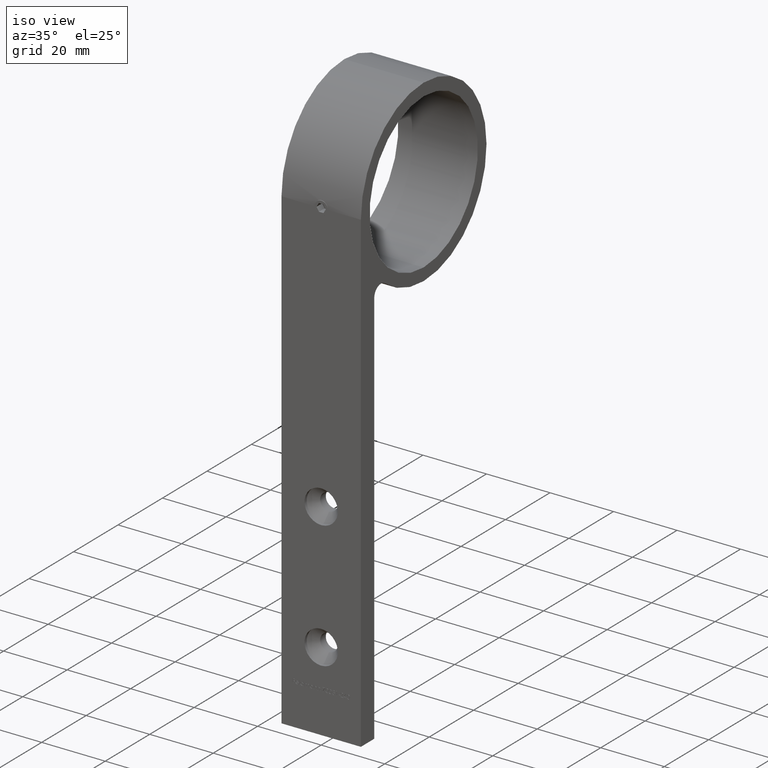
[diagram: clean part render]
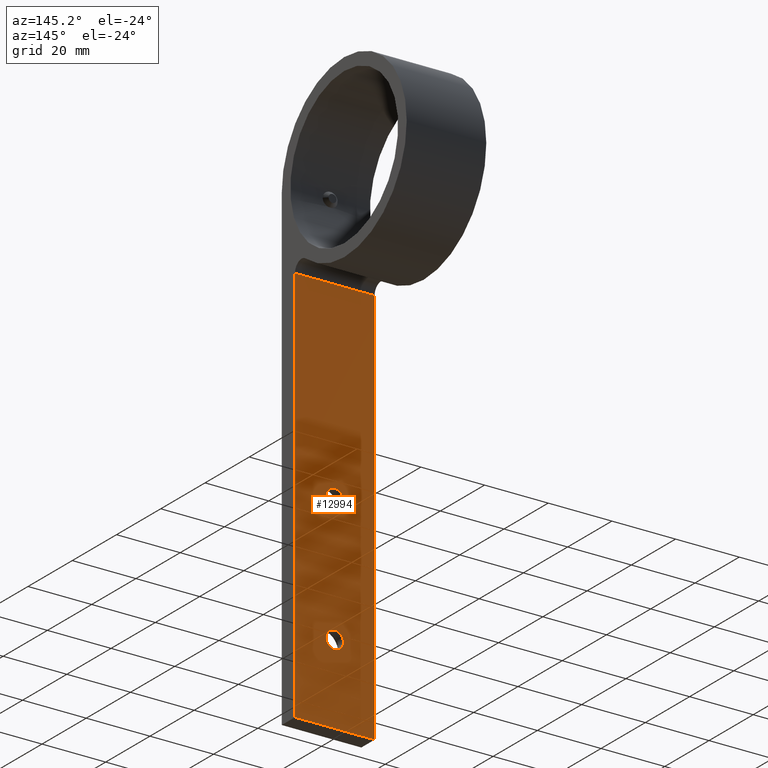
[diagram: tour spotlight — one face highlighted and labeled with its STEP entity id]
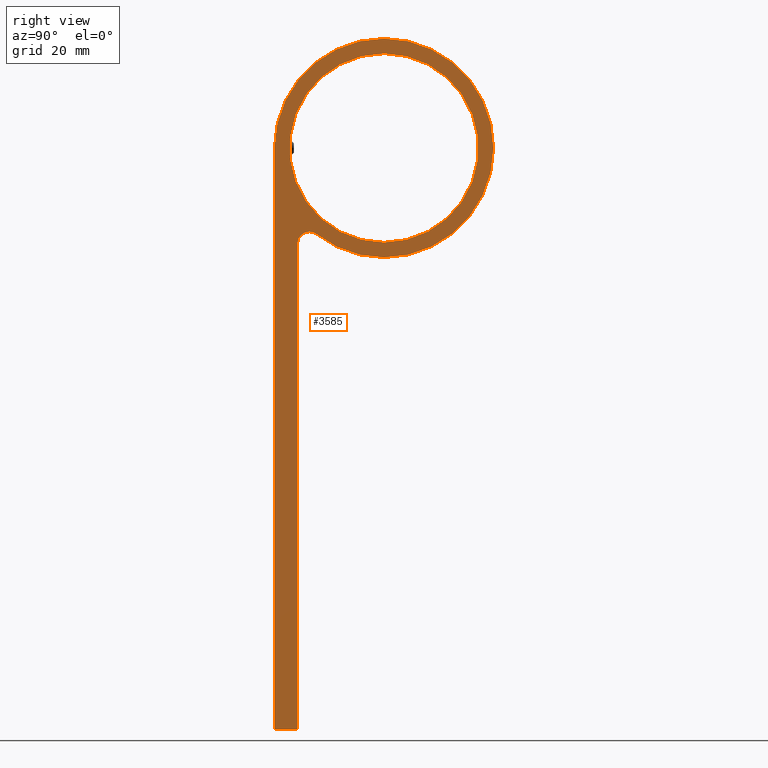
[diagram: tour spotlight — one face highlighted and labeled with its STEP entity id]
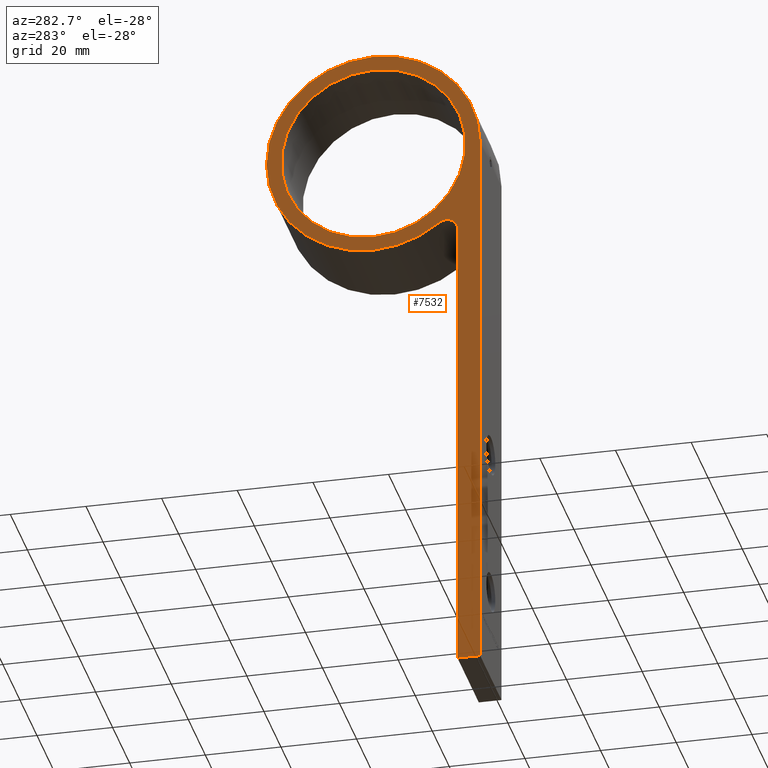
[diagram: tour spotlight — one face highlighted and labeled with its STEP entity id]
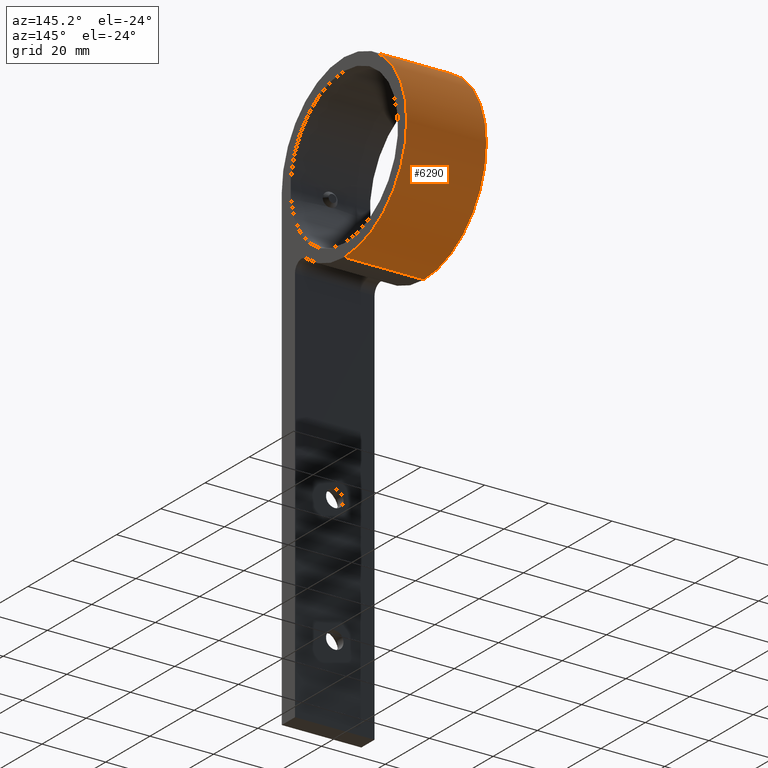
[diagram: tour spotlight — one face highlighted and labeled with its STEP entity id]
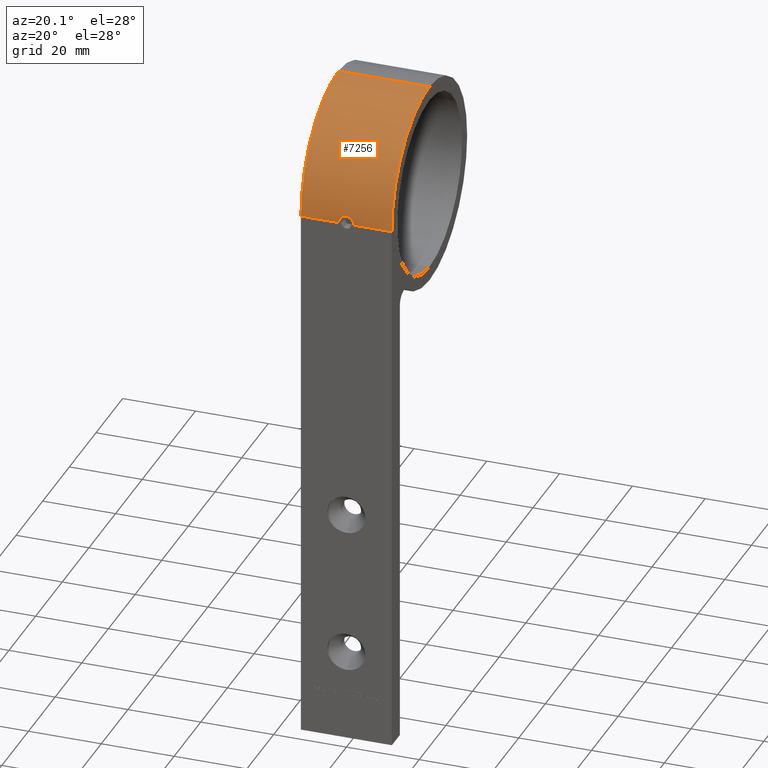
[diagram: tour spotlight — one face highlighted and labeled with its STEP entity id]
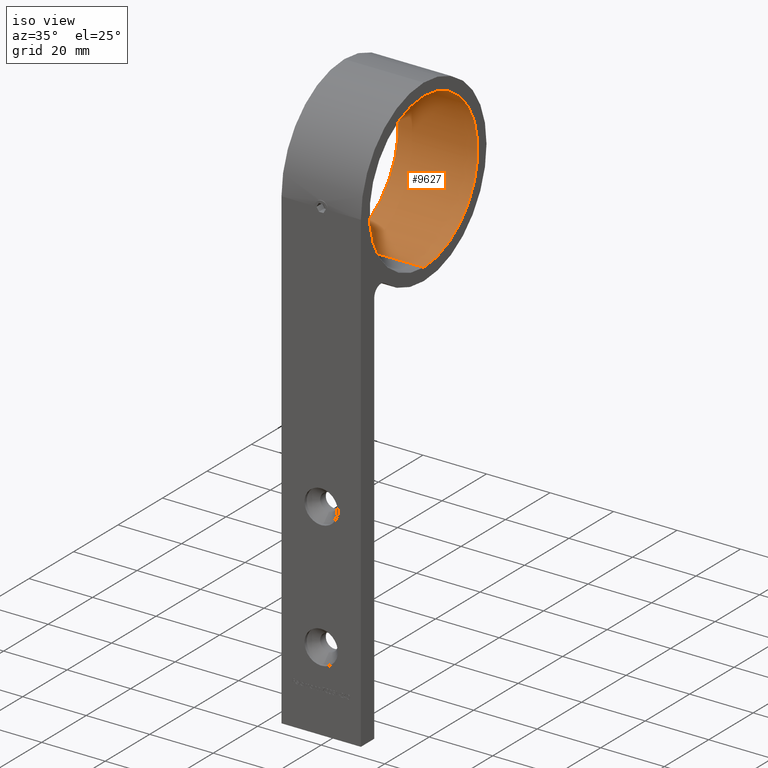
[diagram: tour spotlight — one face highlighted and labeled with its STEP entity id]
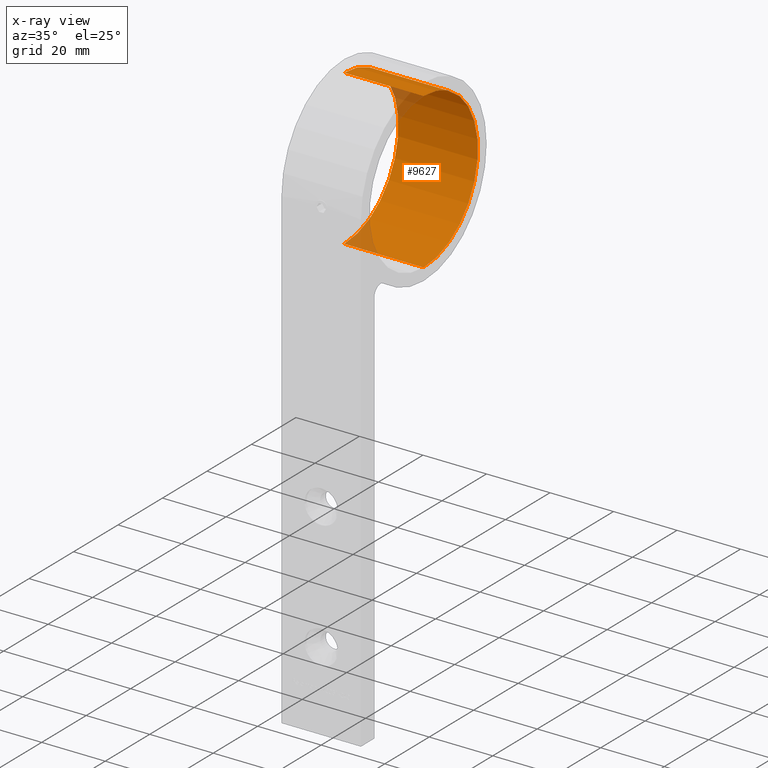
[diagram: x-ray of the same camera — body ghosted, this tour face saturated]
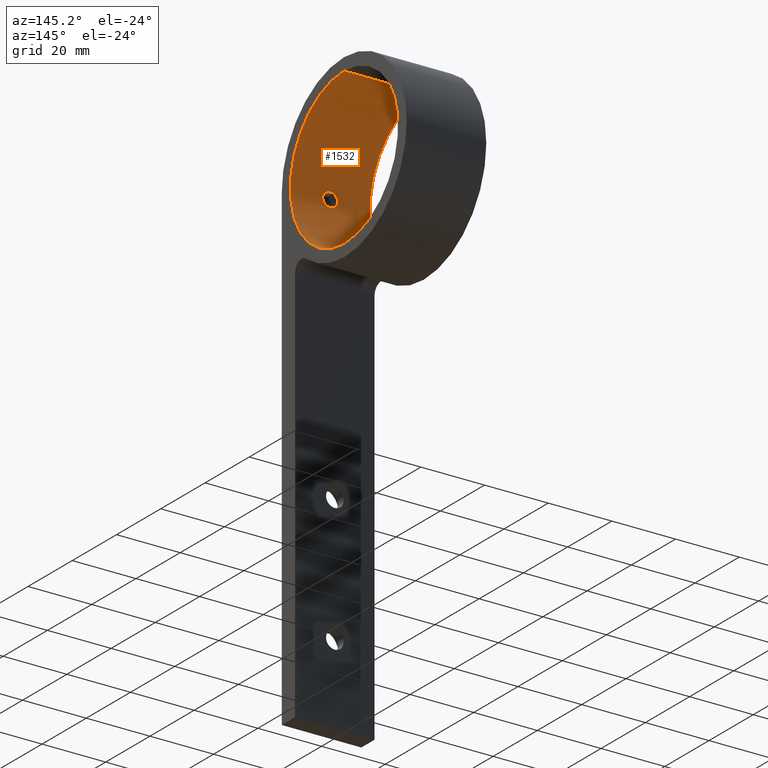
[diagram: tour spotlight — one face highlighted and labeled with its STEP entity id]
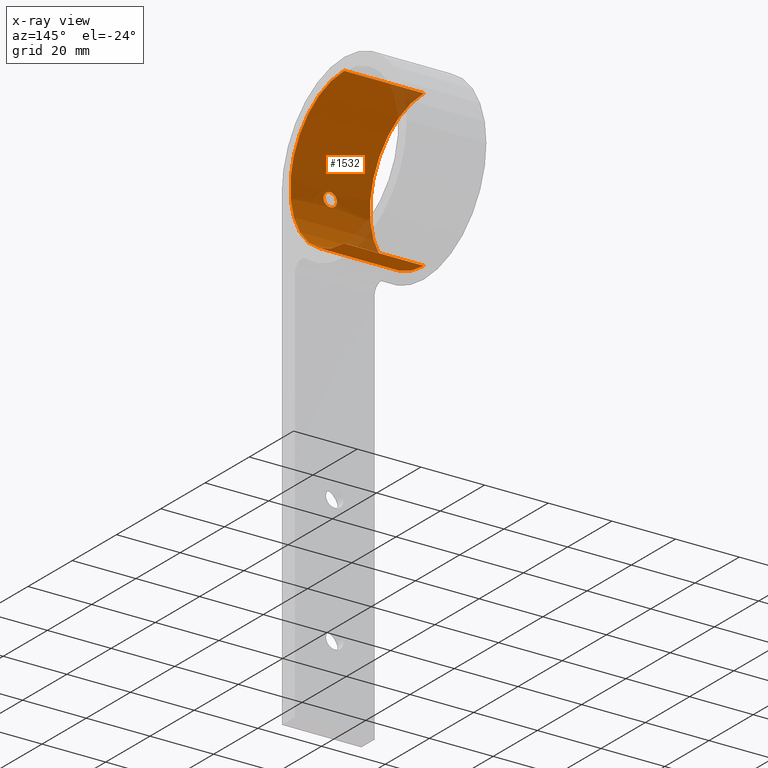
[diagram: x-ray of the same camera — body ghosted, this tour face saturated]
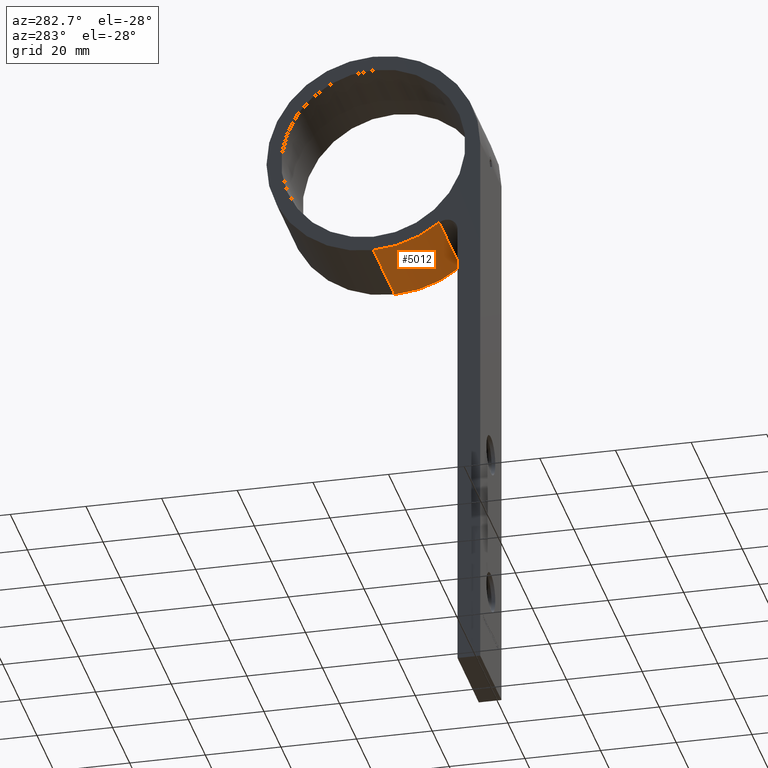
[diagram: tour spotlight — one face highlighted and labeled with its STEP entity id]
A machine part: a face-by-face anatomy tour. The part has 252 B-rep faces; the first image is the clean iso view, then the 8 largest visible faces are spotlighted one at a time (largest first), each with its STEP entity span.

Face 1 — auxiliary view, entity #12994. In plain terms, the highlighted planar face has unit normal (0, -1, -0).
Definition (entity closure, byte-faithful):
#6 = VERTEX_POINT ( 'NONE', #9365 ) ;
#95 = ORIENTED_EDGE ( 'NONE', *, *, #11131, .T. ) ;
#205 = VECTOR ( 'NONE', #2533, 1000.000000000000000 ) ;
#472 = AXIS2_PLACEMENT_3D ( 'NONE', #8249, #6074, #1966 ) ;
#657 = VERTEX_POINT ( 'NONE', #8118 ) ;
#674 = AXIS2_PLACEMENT_3D ( 'NONE', #5007, #7108, #9301 ) ;
#813 = VECTOR ( 'NONE', #10238, 1000.000000000000000 ) ;
#1015 = VECTOR ( 'NONE', #12824, 1000.000000000000000 ) ;
#1142 = CARTESIAN_POINT ( 'NONE',  ( -12.50000000000000000, 5.999999999999988500, -24.61706725018234100 ) ) ;
#1399 = CIRCLE ( 'NONE', #11077, 2.750000000000002700 ) ;
#1606 = FACE_BOUND ( 'NONE', #2253, .T. ) ;
#1966 = DIRECTION ( 'NONE',  ( 0.0000000000000000000, 0.0000000000000000000, -1.000000000000000000 ) ) ;
#2075 = VERTEX_POINT ( 'NONE', #1142 ) ;
#2253 = EDGE_LOOP ( 'NONE', ( #3855, #9153 ) ) ;
#2533 = DIRECTION ( 'NONE',  ( 0.0000000000000000000, -9.158141630991051500E-017, 1.000000000000000000 ) ) ;
#2729 = FACE_OUTER_BOUND ( 'NONE', #3090, .T. ) ;
#2963 = PLANE ( 'NONE',  #674 ) ;
#3090 = EDGE_LOOP ( 'NONE', ( #95, #3936, #8838, #9854 ) ) ;
#3389 = CARTESIAN_POINT ( 'NONE',  ( 12.50000000000000000, 6.000000000000000000, -150.0000000000000000 ) ) ;
#3701 = EDGE_CURVE ( 'NONE', #7289, #657, #1399, .T. ) ;
#3855 = ORIENTED_EDGE ( 'NONE', *, *, #9916, .T. ) ;
#3936 = ORIENTED_EDGE ( 'NONE', *, *, #4679, .T. ) ;
#4269 = CIRCLE ( 'NONE', #5744, 2.750000000000002700 ) ;
#4374 = CARTESIAN_POINT ( 'NONE',  ( 0.0000000000000000000, 5.999999999999997300, -125.0000000000000000 ) ) ;
#4388 = FACE_BOUND ( 'NONE', #10928, .T. ) ;
#4650 = CARTESIAN_POINT ( 'NONE',  ( -4.898587196589413800E-015, 5.999999999999993800, -84.99999999999998600 ) ) ;
#4679 = EDGE_CURVE ( 'NONE', #2075, #11576, #13284, .T. ) ;
#5007 = CARTESIAN_POINT ( 'NONE',  ( 12.50000000000000000, 6.000000000000000000, -150.0000000000000000 ) ) ;
#5428 = DIRECTION ( 'NONE',  ( 0.0000000000000000000, 0.0000000000000000000, -1.000000000000000000 ) ) ;
#5744 = AXIS2_PLACEMENT_3D ( 'NONE', #5976, #13209, #7001 ) ;
#5914 = CIRCLE ( 'NONE', #10212, 2.750000000000002700 ) ;
#5976 = CARTESIAN_POINT ( 'NONE',  ( -4.898587196589413800E-015, 5.999999999999993800, -84.99999999999998600 ) ) ;
#6074 = DIRECTION ( 'NONE',  ( 0.0000000000000000000, -1.000000000000000000, -9.158141630991052700E-017 ) ) ;
#6080 = CARTESIAN_POINT ( 'NONE',  ( 12.50000000000000000, 5.999999999999988500, -24.61706725018234100 ) ) ;
#6330 = EDGE_CURVE ( 'NONE', #6, #12046, #5914, .T. ) ;
#6456 = LINE ( 'NONE', #8827, #205 ) ;
#6637 = DIRECTION ( 'NONE',  ( 0.0000000000000000000, -1.000000000000000000, -9.158141630991052700E-017 ) ) ;
#6687 = DIRECTION ( 'NONE',  ( 0.0000000000000000000, 0.0000000000000000000, -1.000000000000000000 ) ) ;
#6700 = EDGE_CURVE ( 'NONE', #11195, #11576, #6456, .T. ) ;
#6929 = EDGE_CURVE ( 'NONE', #657, #7289, #11669, .T. ) ;
#7001 = DIRECTION ( 'NONE',  ( 0.0000000000000000000, 0.0000000000000000000, -1.000000000000000000 ) ) ;
#7038 = CARTESIAN_POINT ( 'NONE',  ( 12.50000000000000000, 5.999999999999988500, -24.61706725018233800 ) ) ;
#7084 = DIRECTION ( 'NONE',  ( 1.000000000000000000, 0.0000000000000000000, 0.0000000000000000000 ) ) ;
#7108 = DIRECTION ( 'NONE',  ( 0.0000000000000000000, -1.000000000000000000, -9.158141630991052700E-017 ) ) ;
#7231 = CARTESIAN_POINT ( 'NONE',  ( -12.50000000000000000, 6.000000000000000000, -150.0000000000000000 ) ) ;
#7289 = VERTEX_POINT ( 'NONE', #11178 ) ;
#7755 = EDGE_CURVE ( 'NONE', #11195, #10036, #10845, .T. ) ;
#8118 = CARTESIAN_POINT ( 'NONE',  ( 3.367778697655213600E-016, 5.999999999999997300, -122.2500000000000000 ) ) ;
#8241 = CARTESIAN_POINT ( 'NONE',  ( -12.50000000000000000, 6.000000000000000000, -150.0000000000000000 ) ) ;
#8249 = CARTESIAN_POINT ( 'NONE',  ( 0.0000000000000000000, 5.999999999999997300, -125.0000000000000000 ) ) ;
#8573 = CARTESIAN_POINT ( 'NONE',  ( -4.898587196589413800E-015, 5.999999999999993800, -87.75000000000000000 ) ) ;
#8827 = CARTESIAN_POINT ( 'NONE',  ( 12.50000000000000000, 6.000000000000000000, -150.0000000000000000 ) ) ;
#8838 = ORIENTED_EDGE ( 'NONE', *, *, #6700, .F. ) ;
#9153 = ORIENTED_EDGE ( 'NONE', *, *, #6330, .T. ) ;
#9287 = CARTESIAN_POINT ( 'NONE',  ( 12.50000000000000000, 6.000000000000000000, -150.0000000000000000 ) ) ;
#9301 = DIRECTION ( 'NONE',  ( 0.0000000000000000000, 9.158141630991052700E-017, -1.000000000000000000 ) ) ;
#9365 = CARTESIAN_POINT ( 'NONE',  ( -4.561809326823892200E-015, 5.999999999999993800, -82.24999999999998600 ) ) ;
#9595 = VECTOR ( 'NONE', #7084, 1000.000000000000000 ) ;
#9669 = DIRECTION ( 'NONE',  ( 0.0000000000000000000, -1.000000000000000000, -9.158141630991052700E-017 ) ) ;
#9854 = ORIENTED_EDGE ( 'NONE', *, *, #7755, .T. ) ;
#9916 = EDGE_CURVE ( 'NONE', #12046, #6, #4269, .T. ) ;
#10036 = VERTEX_POINT ( 'NONE', #8241 ) ;
#10212 = AXIS2_PLACEMENT_3D ( 'NONE', #4650, #6637, #6687 ) ;
#10238 = DIRECTION ( 'NONE',  ( 0.0000000000000000000, -9.158141630991051500E-017, 1.000000000000000000 ) ) ;
#10705 = ORIENTED_EDGE ( 'NONE', *, *, #6929, .T. ) ;
#10845 = LINE ( 'NONE', #3389, #1015 ) ;
#10928 = EDGE_LOOP ( 'NONE', ( #13250, #10705 ) ) ;
#11077 = AXIS2_PLACEMENT_3D ( 'NONE', #4374, #9669, #5428 ) ;
#11131 = EDGE_CURVE ( 'NONE', #10036, #2075, #12922, .T. ) ;
#11178 = CARTESIAN_POINT ( 'NONE',  ( 0.0000000000000000000, 5.999999999999997300, -127.7500000000000000 ) ) ;
#11195 = VERTEX_POINT ( 'NONE', #9287 ) ;
#11576 = VERTEX_POINT ( 'NONE', #6080 ) ;
#11669 = CIRCLE ( 'NONE', #472, 2.750000000000002700 ) ;
#12046 = VERTEX_POINT ( 'NONE', #8573 ) ;
#12824 = DIRECTION ( 'NONE',  ( -1.000000000000000000, -0.0000000000000000000, -0.0000000000000000000 ) ) ;
#12922 = LINE ( 'NONE', #7231, #813 ) ;
#12994 = ADVANCED_FACE ( 'NONE', ( #4388, #1606, #2729 ), #2963, .F. ) ;
#13209 = DIRECTION ( 'NONE',  ( 0.0000000000000000000, -1.000000000000000000, -9.158141630991052700E-017 ) ) ;
#13250 = ORIENTED_EDGE ( 'NONE', *, *, #3701, .T. ) ;
#13284 = LINE ( 'NONE', #7038, #9595 ) ;

Face 2 — right view, entity #3585. In plain terms, the highlighted planar face has unit normal (1, 0, 0).
Definition (entity closure, byte-faithful):
#22 = CARTESIAN_POINT ( 'NONE',  ( 12.50000000000000000, 8.999999999999989300, -21.61706725018233800 ) ) ;
#205 = VECTOR ( 'NONE', #2533, 1000.000000000000000 ) ;
#233 = CARTESIAN_POINT ( 'NONE',  ( 12.50000000000000000, 0.0000000000000000000, 0.0000000000000000000 ) ) ;
#325 = DIRECTION ( 'NONE',  ( 1.000000000000000000, 0.0000000000000000000, 0.0000000000000000000 ) ) ;
#365 = ORIENTED_EDGE ( 'NONE', *, *, #6574, .T. ) ;
#690 = VERTEX_POINT ( 'NONE', #9214 ) ;
#707 = CARTESIAN_POINT ( 'NONE',  ( 12.50000000000000000, 8.999999999999989300, -24.61706725018233800 ) ) ;
#948 = VERTEX_POINT ( 'NONE', #4890 ) ;
#1366 = ORIENTED_EDGE ( 'NONE', *, *, #6700, .T. ) ;
#1516 = LINE ( 'NONE', #7941, #11177 ) ;
#1625 = EDGE_CURVE ( 'NONE', #4761, #11457, #8472, .T. ) ;
#1654 = VECTOR ( 'NONE', #7920, 1000.000000000000000 ) ;
#1792 = CARTESIAN_POINT ( 'NONE',  ( 12.50000000000000000, 28.25000000000000400, -28.25000000000000000 ) ) ;
#2122 = ORIENTED_EDGE ( 'NONE', *, *, #6498, .T. ) ;
#2197 = ORIENTED_EDGE ( 'NONE', *, *, #10146, .F. ) ;
#2278 = CARTESIAN_POINT ( 'NONE',  ( 12.50000000000000000, 28.25000000000000000, 0.0000000000000000000 ) ) ;
#2501 = VERTEX_POINT ( 'NONE', #3771 ) ;
#2533 = DIRECTION ( 'NONE',  ( 0.0000000000000000000, -9.158141630991051500E-017, 1.000000000000000000 ) ) ;
#2652 = VERTEX_POINT ( 'NONE', #1792 ) ;
#2816 = VERTEX_POINT ( 'NONE', #233 ) ;
#2845 = DIRECTION ( 'NONE',  ( 0.0000000000000000000, 0.0000000000000000000, -1.000000000000000000 ) ) ;
#3149 = AXIS2_PLACEMENT_3D ( 'NONE', #3312, #10763, #12666 ) ;
#3312 = CARTESIAN_POINT ( 'NONE',  ( 12.50000000000000000, 28.25000000000000000, 0.0000000000000000000 ) ) ;
#3343 = AXIS2_PLACEMENT_3D ( 'NONE', #4982, #5859, #2845 ) ;
#3361 = ORIENTED_EDGE ( 'NONE', *, *, #10816, .T. ) ;
#3585 = ADVANCED_FACE ( 'NONE', ( #8626, #11051 ), #7339, .T. ) ;
#3771 = CARTESIAN_POINT ( 'NONE',  ( 12.50000000000000000, 28.25000000000000000, 24.34999999999999800 ) ) ;
#3872 = ORIENTED_EDGE ( 'NONE', *, *, #6886, .T. ) ;
#3876 = DIRECTION ( 'NONE',  ( -1.000000000000000000, -0.0000000000000000000, -0.0000000000000000000 ) ) ;
#4728 = LINE ( 'NONE', #10682, #1654 ) ;
#4761 = VERTEX_POINT ( 'NONE', #22 ) ;
#4801 = DIRECTION ( 'NONE',  ( 0.0000000000000000000, 0.0000000000000000000, -1.000000000000000000 ) ) ;
#4890 = CARTESIAN_POINT ( 'NONE',  ( 12.50000000000000000, 28.25000000000000400, -24.34999999999999800 ) ) ;
#4982 = CARTESIAN_POINT ( 'NONE',  ( 12.50000000000000000, 28.25000000000000000, 0.0000000000000000000 ) ) ;
#5085 = ORIENTED_EDGE ( 'NONE', *, *, #7890, .T. ) ;
#5088 = CIRCLE ( 'NONE', #9460, 28.25000000000000000 ) ;
#5270 = AXIS2_PLACEMENT_3D ( 'NONE', #9668, #5426, #11570 ) ;
#5395 = EDGE_LOOP ( 'NONE', ( #3872, #1366, #13265, #6384, #365, #2122, #3361, #5085 ) ) ;
#5422 = CARTESIAN_POINT ( 'NONE',  ( 12.50000000000000000, 28.25000000000000000, 0.0000000000000000000 ) ) ;
#5426 = DIRECTION ( 'NONE',  ( -1.000000000000000000, -0.0000000000000000000, -0.0000000000000000000 ) ) ;
#5466 = CARTESIAN_POINT ( 'NONE',  ( 12.50000000000000000, 10.84799999999999400, -22.25382879416482900 ) ) ;
#5773 = DIRECTION ( 'NONE',  ( -0.0000000000000000000, 1.000000000000000000, -0.0000000000000000000 ) ) ;
#5859 = DIRECTION ( 'NONE',  ( 1.000000000000000000, 0.0000000000000000000, 0.0000000000000000000 ) ) ;
#5871 = CARTESIAN_POINT ( 'NONE',  ( 12.50000000000000000, 28.25000000000000000, 28.25000000000000000 ) ) ;
#6080 = CARTESIAN_POINT ( 'NONE',  ( 12.50000000000000000, 5.999999999999988500, -24.61706725018234100 ) ) ;
#6252 = CARTESIAN_POINT ( 'NONE',  ( 12.50000000000000000, 28.25000000000000000, 0.0000000000000000000 ) ) ;
#6384 = ORIENTED_EDGE ( 'NONE', *, *, #1625, .T. ) ;
#6393 = AXIS2_PLACEMENT_3D ( 'NONE', #2278, #325, #9564 ) ;
#6456 = LINE ( 'NONE', #8827, #205 ) ;
#6498 = EDGE_CURVE ( 'NONE', #2652, #11029, #5088, .T. ) ;
#6514 = DIRECTION ( 'NONE',  ( 0.0000000000000000000, 0.0000000000000000000, -1.000000000000000000 ) ) ;
#6557 = CIRCLE ( 'NONE', #3343, 24.34999999999999800 ) ;
#6574 = EDGE_CURVE ( 'NONE', #11457, #2652, #11509, .T. ) ;
#6700 = EDGE_CURVE ( 'NONE', #11195, #11576, #6456, .T. ) ;
#6886 = EDGE_CURVE ( 'NONE', #690, #11195, #1516, .T. ) ;
#7192 = DIRECTION ( 'NONE',  ( 0.0000000000000000000, 0.0000000000000000000, -1.000000000000000000 ) ) ;
#7339 = PLANE ( 'NONE',  #13398 ) ;
#7890 = EDGE_CURVE ( 'NONE', #2816, #690, #4728, .T. ) ;
#7920 = DIRECTION ( 'NONE',  ( -0.0000000000000000000, -0.0000000000000000000, -1.000000000000000000 ) ) ;
#7941 = CARTESIAN_POINT ( 'NONE',  ( 12.50000000000000000, 6.000000000000000000, -150.0000000000000000 ) ) ;
#8472 = CIRCLE ( 'NONE', #5270, 2.999999999999999100 ) ;
#8561 = CIRCLE ( 'NONE', #11647, 24.34999999999999800 ) ;
#8626 = FACE_OUTER_BOUND ( 'NONE', #5395, .T. ) ;
#8827 = CARTESIAN_POINT ( 'NONE',  ( 12.50000000000000000, 6.000000000000000000, -150.0000000000000000 ) ) ;
#9214 = CARTESIAN_POINT ( 'NONE',  ( 12.50000000000000000, 0.0000000000000000000, -150.0000000000000000 ) ) ;
#9287 = CARTESIAN_POINT ( 'NONE',  ( 12.50000000000000000, 6.000000000000000000, -150.0000000000000000 ) ) ;
#9460 = AXIS2_PLACEMENT_3D ( 'NONE', #6252, #11507, #11466 ) ;
#9564 = DIRECTION ( 'NONE',  ( 0.0000000000000000000, 0.0000000000000000000, -1.000000000000000000 ) ) ;
#9617 = ORIENTED_EDGE ( 'NONE', *, *, #13173, .F. ) ;
#9668 = CARTESIAN_POINT ( 'NONE',  ( 12.50000000000000000, 8.999999999999989300, -24.61706725018233800 ) ) ;
#9851 = EDGE_CURVE ( 'NONE', #11576, #4761, #11475, .T. ) ;
#10146 = EDGE_CURVE ( 'NONE', #2501, #948, #8561, .T. ) ;
#10682 = CARTESIAN_POINT ( 'NONE',  ( 12.50000000000000000, 0.0000000000000000000, -150.0000000000000000 ) ) ;
#10693 = AXIS2_PLACEMENT_3D ( 'NONE', #707, #3876, #4801 ) ;
#10763 = DIRECTION ( 'NONE',  ( 1.000000000000000000, 0.0000000000000000000, 0.0000000000000000000 ) ) ;
#10816 = EDGE_CURVE ( 'NONE', #11029, #2816, #12258, .T. ) ;
#11029 = VERTEX_POINT ( 'NONE', #5871 ) ;
#11050 = EDGE_LOOP ( 'NONE', ( #2197, #9617 ) ) ;
#11051 = FACE_BOUND ( 'NONE', #11050, .T. ) ;
#11177 = VECTOR ( 'NONE', #5773, 1000.000000000000000 ) ;
#11195 = VERTEX_POINT ( 'NONE', #9287 ) ;
#11457 = VERTEX_POINT ( 'NONE', #5466 ) ;
#11466 = DIRECTION ( 'NONE',  ( 0.0000000000000000000, 0.0000000000000000000, -1.000000000000000000 ) ) ;
#11475 = CIRCLE ( 'NONE', #10693, 2.999999999999999100 ) ;
#11507 = DIRECTION ( 'NONE',  ( 1.000000000000000000, 0.0000000000000000000, 0.0000000000000000000 ) ) ;
#11509 = CIRCLE ( 'NONE', #6393, 28.25000000000000000 ) ;
#11570 = DIRECTION ( 'NONE',  ( 0.0000000000000000000, 1.734723475976807700E-015, -1.000000000000000000 ) ) ;
#11576 = VERTEX_POINT ( 'NONE', #6080 ) ;
#11647 = AXIS2_PLACEMENT_3D ( 'NONE', #5422, #12743, #6514 ) ;
#12258 = CIRCLE ( 'NONE', #3149, 28.25000000000000000 ) ;
#12428 = DIRECTION ( 'NONE',  ( 1.000000000000000000, 0.0000000000000000000, 0.0000000000000000000 ) ) ;
#12666 = DIRECTION ( 'NONE',  ( 0.0000000000000000000, 0.0000000000000000000, -1.000000000000000000 ) ) ;
#12743 = DIRECTION ( 'NONE',  ( 1.000000000000000000, 0.0000000000000000000, 0.0000000000000000000 ) ) ;
#13173 = EDGE_CURVE ( 'NONE', #948, #2501, #6557, .T. ) ;
#13265 = ORIENTED_EDGE ( 'NONE', *, *, #9851, .T. ) ;
#13398 = AXIS2_PLACEMENT_3D ( 'NONE', #13503, #12428, #7192 ) ;
#13503 = CARTESIAN_POINT ( 'NONE',  ( 12.50000000000000000, 28.25000000000000000, 0.0000000000000000000 ) ) ;

Face 3 — auxiliary view, entity #7532. In plain terms, the highlighted planar face has unit normal (1, 0, 0).
Definition (entity closure, byte-faithful):
#154 = DIRECTION ( 'NONE',  ( 1.000000000000000000, 0.0000000000000000000, 0.0000000000000000000 ) ) ;
#317 = EDGE_CURVE ( 'NONE', #3720, #10036, #11078, .T. ) ;
#409 = AXIS2_PLACEMENT_3D ( 'NONE', #2882, #11275, #6147 ) ;
#510 = ORIENTED_EDGE ( 'NONE', *, *, #5662, .F. ) ;
#570 = VECTOR ( 'NONE', #6702, 1000.000000000000000 ) ;
#571 = DIRECTION ( 'NONE',  ( 0.0000000000000000000, 0.0000000000000000000, -1.000000000000000000 ) ) ;
#662 = FACE_BOUND ( 'NONE', #9077, .T. ) ;
#728 = CARTESIAN_POINT ( 'NONE',  ( -12.50000000000000000, 28.25000000000000000, 0.0000000000000000000 ) ) ;
#766 = CARTESIAN_POINT ( 'NONE',  ( -12.50000000000000000, 8.999999999999989300, -24.61706725018233800 ) ) ;
#813 = VECTOR ( 'NONE', #10238, 1000.000000000000000 ) ;
#979 = DIRECTION ( 'NONE',  ( 0.0000000000000000000, 0.0000000000000000000, -1.000000000000000000 ) ) ;
#1142 = CARTESIAN_POINT ( 'NONE',  ( -12.50000000000000000, 5.999999999999988500, -24.61706725018234100 ) ) ;
#1183 = CIRCLE ( 'NONE', #12856, 2.999999999999999100 ) ;
#1408 = VERTEX_POINT ( 'NONE', #5554 ) ;
#1515 = VERTEX_POINT ( 'NONE', #6056 ) ;
#1555 = LINE ( 'NONE', #6309, #7480 ) ;
#1580 = DIRECTION ( 'NONE',  ( 1.000000000000000000, 0.0000000000000000000, 0.0000000000000000000 ) ) ;
#1594 = ORIENTED_EDGE ( 'NONE', *, *, #11131, .F. ) ;
#1628 = CIRCLE ( 'NONE', #9664, 2.999999999999999100 ) ;
#1784 = DIRECTION ( 'NONE',  ( 0.0000000000000000000, 0.0000000000000000000, -1.000000000000000000 ) ) ;
#1935 = PLANE ( 'NONE',  #12609 ) ;
#2075 = VERTEX_POINT ( 'NONE', #1142 ) ;
#2766 = ORIENTED_EDGE ( 'NONE', *, *, #7473, .T. ) ;
#2882 = CARTESIAN_POINT ( 'NONE',  ( -12.50000000000000000, 28.25000000000000000, 0.0000000000000000000 ) ) ;
#3720 = VERTEX_POINT ( 'NONE', #4283 ) ;
#3852 = DIRECTION ( 'NONE',  ( 1.000000000000000000, 0.0000000000000000000, 0.0000000000000000000 ) ) ;
#3911 = EDGE_CURVE ( 'NONE', #1515, #3720, #1555, .T. ) ;
#3925 = CIRCLE ( 'NONE', #4093, 28.25000000000000000 ) ;
#4093 = AXIS2_PLACEMENT_3D ( 'NONE', #9879, #9842, #10929 ) ;
#4204 = VERTEX_POINT ( 'NONE', #6034 ) ;
#4283 = CARTESIAN_POINT ( 'NONE',  ( -12.50000000000000000, 0.0000000000000000000, -150.0000000000000000 ) ) ;
#4322 = DIRECTION ( 'NONE',  ( 0.0000000000000000000, 0.0000000000000000000, -1.000000000000000000 ) ) ;
#4470 = CIRCLE ( 'NONE', #7512, 24.34999999999999800 ) ;
#4737 = CARTESIAN_POINT ( 'NONE',  ( -12.50000000000000000, 8.999999999999989300, -24.61706725018233800 ) ) ;
#4831 = EDGE_CURVE ( 'NONE', #1408, #4204, #4470, .T. ) ;
#4955 = AXIS2_PLACEMENT_3D ( 'NONE', #12248, #3852, #10116 ) ;
#5246 = ORIENTED_EDGE ( 'NONE', *, *, #11540, .T. ) ;
#5255 = FACE_OUTER_BOUND ( 'NONE', #8597, .T. ) ;
#5554 = CARTESIAN_POINT ( 'NONE',  ( -12.50000000000000000, 28.25000000000000000, 24.34999999999999800 ) ) ;
#5662 = EDGE_CURVE ( 'NONE', #9629, #9044, #7911, .T. ) ;
#5673 = VERTEX_POINT ( 'NONE', #13278 ) ;
#5753 = ORIENTED_EDGE ( 'NONE', *, *, #13468, .F. ) ;
#6034 = CARTESIAN_POINT ( 'NONE',  ( -12.50000000000000000, 28.25000000000000400, -24.34999999999999800 ) ) ;
#6056 = CARTESIAN_POINT ( 'NONE',  ( -12.50000000000000000, 0.0000000000000000000, 0.0000000000000000000 ) ) ;
#6147 = DIRECTION ( 'NONE',  ( 0.0000000000000000000, 0.0000000000000000000, -1.000000000000000000 ) ) ;
#6309 = CARTESIAN_POINT ( 'NONE',  ( -12.50000000000000000, 0.0000000000000000000, -150.0000000000000000 ) ) ;
#6702 = DIRECTION ( 'NONE',  ( -0.0000000000000000000, 1.000000000000000000, -0.0000000000000000000 ) ) ;
#6711 = CIRCLE ( 'NONE', #4955, 28.25000000000000000 ) ;
#7096 = ORIENTED_EDGE ( 'NONE', *, *, #10908, .F. ) ;
#7231 = CARTESIAN_POINT ( 'NONE',  ( -12.50000000000000000, 6.000000000000000000, -150.0000000000000000 ) ) ;
#7473 = EDGE_CURVE ( 'NONE', #4204, #1408, #9039, .T. ) ;
#7480 = VECTOR ( 'NONE', #11373, 1000.000000000000000 ) ;
#7512 = AXIS2_PLACEMENT_3D ( 'NONE', #10610, #154, #4322 ) ;
#7532 = ADVANCED_FACE ( 'NONE', ( #5255, #662 ), #1935, .F. ) ;
#7911 = CIRCLE ( 'NONE', #11621, 28.25000000000000000 ) ;
#8062 = DIRECTION ( 'NONE',  ( 1.000000000000000000, 0.0000000000000000000, 0.0000000000000000000 ) ) ;
#8108 = DIRECTION ( 'NONE',  ( 1.000000000000000000, 0.0000000000000000000, 0.0000000000000000000 ) ) ;
#8156 = ORIENTED_EDGE ( 'NONE', *, *, #317, .F. ) ;
#8241 = CARTESIAN_POINT ( 'NONE',  ( -12.50000000000000000, 6.000000000000000000, -150.0000000000000000 ) ) ;
#8451 = CARTESIAN_POINT ( 'NONE',  ( -12.50000000000000000, 10.84799999999999400, -22.25382879416482900 ) ) ;
#8597 = EDGE_LOOP ( 'NONE', ( #8156, #12579, #7096, #5753, #510, #5246, #13365, #1594 ) ) ;
#8695 = EDGE_CURVE ( 'NONE', #5673, #2075, #1183, .T. ) ;
#8925 = CARTESIAN_POINT ( 'NONE',  ( -12.50000000000000000, 28.25000000000000000, 28.25000000000000000 ) ) ;
#8938 = CARTESIAN_POINT ( 'NONE',  ( -12.50000000000000000, 28.25000000000000400, -28.25000000000000000 ) ) ;
#9039 = CIRCLE ( 'NONE', #409, 24.34999999999999800 ) ;
#9044 = VERTEX_POINT ( 'NONE', #8938 ) ;
#9077 = EDGE_LOOP ( 'NONE', ( #12154, #2766 ) ) ;
#9629 = VERTEX_POINT ( 'NONE', #8451 ) ;
#9664 = AXIS2_PLACEMENT_3D ( 'NONE', #766, #8108, #571 ) ;
#9842 = DIRECTION ( 'NONE',  ( 1.000000000000000000, 0.0000000000000000000, 0.0000000000000000000 ) ) ;
#9879 = CARTESIAN_POINT ( 'NONE',  ( -12.50000000000000000, 28.25000000000000000, 0.0000000000000000000 ) ) ;
#10036 = VERTEX_POINT ( 'NONE', #8241 ) ;
#10116 = DIRECTION ( 'NONE',  ( 0.0000000000000000000, 0.0000000000000000000, -1.000000000000000000 ) ) ;
#10238 = DIRECTION ( 'NONE',  ( 0.0000000000000000000, -9.158141630991051500E-017, 1.000000000000000000 ) ) ;
#10610 = CARTESIAN_POINT ( 'NONE',  ( -12.50000000000000000, 28.25000000000000000, 0.0000000000000000000 ) ) ;
#10908 = EDGE_CURVE ( 'NONE', #10920, #1515, #3925, .T. ) ;
#10920 = VERTEX_POINT ( 'NONE', #8925 ) ;
#10929 = DIRECTION ( 'NONE',  ( 0.0000000000000000000, 0.0000000000000000000, -1.000000000000000000 ) ) ;
#11078 = LINE ( 'NONE', #11829, #570 ) ;
#11131 = EDGE_CURVE ( 'NONE', #10036, #2075, #12922, .T. ) ;
#11275 = DIRECTION ( 'NONE',  ( 1.000000000000000000, 0.0000000000000000000, 0.0000000000000000000 ) ) ;
#11373 = DIRECTION ( 'NONE',  ( -0.0000000000000000000, -0.0000000000000000000, -1.000000000000000000 ) ) ;
#11540 = EDGE_CURVE ( 'NONE', #9629, #5673, #1628, .T. ) ;
#11621 = AXIS2_PLACEMENT_3D ( 'NONE', #728, #8062, #1784 ) ;
#11829 = CARTESIAN_POINT ( 'NONE',  ( -12.50000000000000000, 6.000000000000000000, -150.0000000000000000 ) ) ;
#12154 = ORIENTED_EDGE ( 'NONE', *, *, #4831, .T. ) ;
#12248 = CARTESIAN_POINT ( 'NONE',  ( -12.50000000000000000, 28.25000000000000000, 0.0000000000000000000 ) ) ;
#12297 = CARTESIAN_POINT ( 'NONE',  ( -12.50000000000000000, 28.25000000000000000, 0.0000000000000000000 ) ) ;
#12579 = ORIENTED_EDGE ( 'NONE', *, *, #3911, .F. ) ;
#12609 = AXIS2_PLACEMENT_3D ( 'NONE', #12297, #13421, #979 ) ;
#12856 = AXIS2_PLACEMENT_3D ( 'NONE', #4737, #1580, #13197 ) ;
#12922 = LINE ( 'NONE', #7231, #813 ) ;
#13197 = DIRECTION ( 'NONE',  ( 0.0000000000000000000, 0.0000000000000000000, -1.000000000000000000 ) ) ;
#13278 = CARTESIAN_POINT ( 'NONE',  ( -12.50000000000000000, 8.999999999999989300, -21.61706725018233800 ) ) ;
#13365 = ORIENTED_EDGE ( 'NONE', *, *, #8695, .T. ) ;
#13421 = DIRECTION ( 'NONE',  ( 1.000000000000000000, 0.0000000000000000000, 0.0000000000000000000 ) ) ;
#13468 = EDGE_CURVE ( 'NONE', #9044, #10920, #6711, .T. ) ;

Face 4 — auxiliary view, entity #6290. In plain terms, the highlighted cylindrical surface (partial cylindrical patch) has radius 28.25 mm, axis along (-1, -0, -0).
Definition (entity closure, byte-faithful):
#878 = EDGE_LOOP ( 'NONE', ( #981, #1113, #10948, #3507 ) ) ;
#981 = ORIENTED_EDGE ( 'NONE', *, *, #6498, .F. ) ;
#1064 = VECTOR ( 'NONE', #5374, 1000.000000000000000 ) ;
#1113 = ORIENTED_EDGE ( 'NONE', *, *, #5838, .T. ) ;
#1333 = CARTESIAN_POINT ( 'NONE',  ( 12.50000000000000000, 28.25000000000000400, -28.25000000000000000 ) ) ;
#1792 = CARTESIAN_POINT ( 'NONE',  ( 12.50000000000000000, 28.25000000000000400, -28.25000000000000000 ) ) ;
#2412 = CARTESIAN_POINT ( 'NONE',  ( 12.50000000000000000, 28.25000000000000000, 0.0000000000000000000 ) ) ;
#2652 = VERTEX_POINT ( 'NONE', #1792 ) ;
#3106 = EDGE_CURVE ( 'NONE', #11029, #10920, #9071, .T. ) ;
#3507 = ORIENTED_EDGE ( 'NONE', *, *, #3106, .F. ) ;
#3852 = DIRECTION ( 'NONE',  ( 1.000000000000000000, 0.0000000000000000000, 0.0000000000000000000 ) ) ;
#4955 = AXIS2_PLACEMENT_3D ( 'NONE', #12248, #3852, #10116 ) ;
#5088 = CIRCLE ( 'NONE', #9460, 28.25000000000000000 ) ;
#5374 = DIRECTION ( 'NONE',  ( -1.000000000000000000, -0.0000000000000000000, -0.0000000000000000000 ) ) ;
#5533 = DIRECTION ( 'NONE',  ( -1.000000000000000000, -0.0000000000000000000, -0.0000000000000000000 ) ) ;
#5838 = EDGE_CURVE ( 'NONE', #2652, #9044, #13436, .T. ) ;
#5871 = CARTESIAN_POINT ( 'NONE',  ( 12.50000000000000000, 28.25000000000000000, 28.25000000000000000 ) ) ;
#6252 = CARTESIAN_POINT ( 'NONE',  ( 12.50000000000000000, 28.25000000000000000, 0.0000000000000000000 ) ) ;
#6290 = ADVANCED_FACE ( 'NONE', ( #9885 ), #12953, .T. ) ;
#6498 = EDGE_CURVE ( 'NONE', #2652, #11029, #5088, .T. ) ;
#6711 = CIRCLE ( 'NONE', #4955, 28.25000000000000000 ) ;
#7605 = DIRECTION ( 'NONE',  ( 0.0000000000000000000, 0.0000000000000000000, 1.000000000000000000 ) ) ;
#8506 = AXIS2_PLACEMENT_3D ( 'NONE', #2412, #12776, #7605 ) ;
#8925 = CARTESIAN_POINT ( 'NONE',  ( -12.50000000000000000, 28.25000000000000000, 28.25000000000000000 ) ) ;
#8938 = CARTESIAN_POINT ( 'NONE',  ( -12.50000000000000000, 28.25000000000000400, -28.25000000000000000 ) ) ;
#9044 = VERTEX_POINT ( 'NONE', #8938 ) ;
#9071 = LINE ( 'NONE', #11652, #1064 ) ;
#9460 = AXIS2_PLACEMENT_3D ( 'NONE', #6252, #11507, #11466 ) ;
#9885 = FACE_OUTER_BOUND ( 'NONE', #878, .T. ) ;
#10116 = DIRECTION ( 'NONE',  ( 0.0000000000000000000, 0.0000000000000000000, -1.000000000000000000 ) ) ;
#10920 = VERTEX_POINT ( 'NONE', #8925 ) ;
#10948 = ORIENTED_EDGE ( 'NONE', *, *, #13468, .T. ) ;
#11029 = VERTEX_POINT ( 'NONE', #5871 ) ;
#11466 = DIRECTION ( 'NONE',  ( 0.0000000000000000000, 0.0000000000000000000, -1.000000000000000000 ) ) ;
#11507 = DIRECTION ( 'NONE',  ( 1.000000000000000000, 0.0000000000000000000, 0.0000000000000000000 ) ) ;
#11652 = CARTESIAN_POINT ( 'NONE',  ( 12.50000000000000000, 28.25000000000000000, 28.25000000000000000 ) ) ;
#12130 = VECTOR ( 'NONE', #5533, 1000.000000000000000 ) ;
#12248 = CARTESIAN_POINT ( 'NONE',  ( -12.50000000000000000, 28.25000000000000000, 0.0000000000000000000 ) ) ;
#12776 = DIRECTION ( 'NONE',  ( -1.000000000000000000, -0.0000000000000000000, -0.0000000000000000000 ) ) ;
#12953 = CYLINDRICAL_SURFACE ( 'NONE', #8506, 28.25000000000000000 ) ;
#13436 = LINE ( 'NONE', #1333, #12130 ) ;
#13468 = EDGE_CURVE ( 'NONE', #9044, #10920, #6711, .T. ) ;

Face 5 — auxiliary view, entity #7256. In plain terms, the highlighted cylindrical surface (partial cylindrical patch) has radius 28.25 mm, axis along (-1, -0, -0).
Definition (entity closure, byte-faithful):
#30 = CARTESIAN_POINT ( 'NONE',  ( 2.099999999999998300, 0.0000000000000000000, 0.0000000000000000000 ) ) ;
#233 = CARTESIAN_POINT ( 'NONE',  ( 12.50000000000000000, 0.0000000000000000000, 0.0000000000000000000 ) ) ;
#340 = CARTESIAN_POINT ( 'NONE',  ( -2.086367575719846100, 0.001022666167489144100, 0.2753400592972835600 ) ) ;
#816 = CARTESIAN_POINT ( 'NONE',  ( 2.571758058374325900E-016, 0.07816122437159905800, 2.099999999999998300 ) ) ;
#1064 = VECTOR ( 'NONE', #5374, 1000.000000000000000 ) ;
#1097 = CARTESIAN_POINT ( 'NONE',  ( 1.280401666746488100, 0.04930805967769892600, 1.670109828654142500 ) ) ;
#1129 = EDGE_LOOP ( 'NONE', ( #7002, #11073, #3691, #2363, #5237, #3015, #11831 ) ) ;
#1147 = CARTESIAN_POINT ( 'NONE',  ( 2.571758058374325900E-016, 0.07816122437159905800, 2.099999999999998300 ) ) ;
#1515 = VERTEX_POINT ( 'NONE', #6056 ) ;
#1542 = CARTESIAN_POINT ( 'NONE',  ( -1.887044326995197500, 0.01508071037155729100, 0.9316762488795277100 ) ) ;
#1632 = AXIS2_PLACEMENT_3D ( 'NONE', #2677, #10007, #13130 ) ;
#1778 = CARTESIAN_POINT ( 'NONE',  ( 12.50000000000000000, 0.0000000000000000000, 0.0000000000000000000 ) ) ;
#1911 = CARTESIAN_POINT ( 'NONE',  ( 12.50000000000000000, 0.0000000000000000000, 0.0000000000000000000 ) ) ;
#2187 = CARTESIAN_POINT ( 'NONE',  ( 0.1369345826525104600, 0.07816122437159381300, 2.099999999999997900 ) ) ;
#2243 = CARTESIAN_POINT ( 'NONE',  ( 1.992528016024472500, 0.007834681076297589400, 0.6773261994333950000 ) ) ;
#2363 = ORIENTED_EDGE ( 'NONE', *, *, #9281, .F. ) ;
#2420 = CARTESIAN_POINT ( 'NONE',  ( -0.2741121635806035900, 0.07816122437159382700, 2.099999999999999600 ) ) ;
#2677 = CARTESIAN_POINT ( 'NONE',  ( 12.50000000000000000, 28.25000000000000000, 0.0000000000000000000 ) ) ;
#2816 = VERTEX_POINT ( 'NONE', #233 ) ;
#3015 = ORIENTED_EDGE ( 'NONE', *, *, #7810, .T. ) ;
#3106 = EDGE_CURVE ( 'NONE', #11029, #10920, #9071, .T. ) ;
#3146 = CARTESIAN_POINT ( 'NONE',  ( 1.821346486694210800, 0.01944835691257408600, 1.054221838607343600 ) ) ;
#3149 = AXIS2_PLACEMENT_3D ( 'NONE', #3312, #10763, #12666 ) ;
#3172 = VERTEX_POINT ( 'NONE', #5675 ) ;
#3243 = CARTESIAN_POINT ( 'NONE',  ( 0.6760508960517733800, 0.07033692411094208400, 1.992954654235564500 ) ) ;
#3312 = CARTESIAN_POINT ( 'NONE',  ( 12.50000000000000000, 28.25000000000000000, 0.0000000000000000000 ) ) ;
#3436 = CARTESIAN_POINT ( 'NONE',  ( -1.056233345674958000, 0.05950027696455757000, 1.835547744119658800 ) ) ;
#3691 = ORIENTED_EDGE ( 'NONE', *, *, #10908, .T. ) ;
#3925 = CIRCLE ( 'NONE', #4093, 28.25000000000000000 ) ;
#4093 = AXIS2_PLACEMENT_3D ( 'NONE', #9879, #9842, #10929 ) ;
#4141 = CARTESIAN_POINT ( 'NONE',  ( 2.086092842762413000, 0.001043150202306902900, 0.2775371429574960400 ) ) ;
#4186 = CARTESIAN_POINT ( 'NONE',  ( 1.582401672423035600, 0.03392448930784997000, 1.387515845694815300 ) ) ;
#4459 = CARTESIAN_POINT ( 'NONE',  ( -2.099999999999999200, 5.510910596163204200E-017, 0.0000000000000000000 ) ) ;
#4898 = CYLINDRICAL_SURFACE ( 'NONE', #1632, 28.25000000000000000 ) ;
#5237 = ORIENTED_EDGE ( 'NONE', *, *, #6703, .T. ) ;
#5374 = DIRECTION ( 'NONE',  ( -1.000000000000000000, -0.0000000000000000000, -0.0000000000000000000 ) ) ;
#5555 = CARTESIAN_POINT ( 'NONE',  ( -2.099999999999998300, -2.541098841762901900E-017, 0.1388352114485771300 ) ) ;
#5675 = CARTESIAN_POINT ( 'NONE',  ( -2.099999999999999200, 5.510910596163204200E-017, 0.0000000000000000000 ) ) ;
#5871 = CARTESIAN_POINT ( 'NONE',  ( 12.50000000000000000, 28.25000000000000000, 28.25000000000000000 ) ) ;
#6056 = CARTESIAN_POINT ( 'NONE',  ( -12.50000000000000000, 0.0000000000000000000, 0.0000000000000000000 ) ) ;
#6319 = CARTESIAN_POINT ( 'NONE',  ( 1.669306391168984900, 0.02884965356602554200, 1.281445621941241600 ) ) ;
#6409 = CARTESIAN_POINT ( 'NONE',  ( 1.053028450649253500, 0.05871648181607227300, 1.822039063823162300 ) ) ;
#6439 = FACE_OUTER_BOUND ( 'NONE', #1129, .T. ) ;
#6600 = VECTOR ( 'NONE', #8147, 1000.000000000000000 ) ;
#6652 = CARTESIAN_POINT ( 'NONE',  ( -1.290581554768299100, 0.04927932127581950000, 1.679124810103181900 ) ) ;
#6699 = CARTESIAN_POINT ( 'NONE',  ( -1.581279588600341000, 0.03398359708084940100, 1.388639651611959000 ) ) ;
#6703 = EDGE_CURVE ( 'NONE', #3172, #9072, #9956, .T. ) ;
#6897 = LINE ( 'NONE', #1778, #11135 ) ;
#7002 = ORIENTED_EDGE ( 'NONE', *, *, #10816, .F. ) ;
#7256 = ADVANCED_FACE ( 'NONE', ( #6439 ), #4898, .T. ) ;
#7370 = CARTESIAN_POINT ( 'NONE',  ( 2.099999999999999200, 3.671093732959341600E-016, 0.1387119602917574700 ) ) ;
#7607 = CARTESIAN_POINT ( 'NONE',  ( 2.099999999999998300, 0.0000000000000000000, 0.0000000000000000000 ) ) ;
#7810 = EDGE_CURVE ( 'NONE', #9072, #7813, #8143, .T. ) ;
#7813 = VERTEX_POINT ( 'NONE', #30 ) ;
#8143 = B_SPLINE_CURVE_WITH_KNOTS ( 'NONE', 3,
 ( #1147, #2187, #11432, #9523, #3243, #11609, #6409, #1097, #8527, #4186, #6319, #3146, #11515, #2243, #9570, #4141, #7370, #7607 ),
 .UNSPECIFIED., .F., .F.,
 ( 4, 2, 2, 2, 2, 2, 2, 2, 4 ),
 ( 0.003284663761304736900, 0.003694882752896316500, 0.004105101744487896600, 0.004515320736079476600, 0.004925539727671056700, 0.005335758719262636800, 0.005745977710854216800, 0.006156196702445797800, 0.006566415694037377800 ),
 .UNSPECIFIED. ) ;
#8147 = DIRECTION ( 'NONE',  ( -1.000000000000000000, -0.0000000000000000000, -0.0000000000000000000 ) ) ;
#8527 = CARTESIAN_POINT ( 'NONE',  ( 1.386397396699002900, 0.04423782427129968600, 1.583381676465799700 ) ) ;
#8742 = CARTESIAN_POINT ( 'NONE',  ( -0.5506399068155709600, 0.07391350700165987000, 2.044910779100306300 ) ) ;
#8925 = CARTESIAN_POINT ( 'NONE',  ( -12.50000000000000000, 28.25000000000000000, 28.25000000000000000 ) ) ;
#9071 = LINE ( 'NONE', #11652, #1064 ) ;
#9072 = VERTEX_POINT ( 'NONE', #816 ) ;
#9281 = EDGE_CURVE ( 'NONE', #3172, #1515, #9707, .T. ) ;
#9523 = CARTESIAN_POINT ( 'NONE',  ( 0.5452090709433089500, 0.07320739626958426600, 2.032629464830316500 ) ) ;
#9558 = EDGE_CURVE ( 'NONE', #2816, #7813, #6897, .T. ) ;
#9570 = CARTESIAN_POINT ( 'NONE',  ( 2.032274817997346000, 0.004966442063242139600, 0.5465064304099520600 ) ) ;
#9707 = LINE ( 'NONE', #1911, #6600 ) ;
#9712 = CARTESIAN_POINT ( 'NONE',  ( -2.032961781150223000, 0.004916811062755620200, 0.5438825292758086000 ) ) ;
#9759 = CARTESIAN_POINT ( 'NONE',  ( -1.992536095776647600, 0.007834164272025309600, 0.6773159025138418800 ) ) ;
#9837 = CARTESIAN_POINT ( 'NONE',  ( -1.670004209548539500, 0.02880897592354251700, 1.280596972992074100 ) ) ;
#9842 = DIRECTION ( 'NONE',  ( 1.000000000000000000, 0.0000000000000000000, 0.0000000000000000000 ) ) ;
#9879 = CARTESIAN_POINT ( 'NONE',  ( -12.50000000000000000, 28.25000000000000000, 0.0000000000000000000 ) ) ;
#9956 = B_SPLINE_CURVE_WITH_KNOTS ( 'NONE', 3,
 ( #4459, #5555, #340, #9712, #9759, #1542, #11788, #9837, #6699, #6652, #3436, #8742, #2420, #10758 ),
 .UNSPECIFIED., .F., .F.,
 ( 4, 2, 2, 2, 2, 2, 4 ),
 ( 4.976791008437453000E-018, 0.0004105829701630966100, 0.0008211659403261882300, 0.001231748910489279600, 0.001642331880652371000, 0.002463497820978553600, 0.003284663761304736900 ),
 .UNSPECIFIED. ) ;
#10007 = DIRECTION ( 'NONE',  ( -1.000000000000000000, -0.0000000000000000000, -0.0000000000000000000 ) ) ;
#10758 = CARTESIAN_POINT ( 'NONE',  ( 2.571758058374325900E-016, 0.07816122437159905800, 2.099999999999998300 ) ) ;
#10763 = DIRECTION ( 'NONE',  ( 1.000000000000000000, 0.0000000000000000000, 0.0000000000000000000 ) ) ;
#10816 = EDGE_CURVE ( 'NONE', #11029, #2816, #12258, .T. ) ;
#10908 = EDGE_CURVE ( 'NONE', #10920, #1515, #3925, .T. ) ;
#10920 = VERTEX_POINT ( 'NONE', #8925 ) ;
#10929 = DIRECTION ( 'NONE',  ( 0.0000000000000000000, 0.0000000000000000000, -1.000000000000000000 ) ) ;
#11029 = VERTEX_POINT ( 'NONE', #5871 ) ;
#11073 = ORIENTED_EDGE ( 'NONE', *, *, #3106, .T. ) ;
#11135 = VECTOR ( 'NONE', #13271, 1000.000000000000000 ) ;
#11432 = CARTESIAN_POINT ( 'NONE',  ( 0.2760225553111435000, 0.07713048066209697600, 2.086299839738946700 ) ) ;
#11515 = CARTESIAN_POINT ( 'NONE',  ( 1.887093536751183900, 0.01507736820902095600, 0.9315667762609476400 ) ) ;
#11609 = CARTESIAN_POINT ( 'NONE',  ( 0.9301914505968825700, 0.06309484190688437200, 1.887765063011834100 ) ) ;
#11652 = CARTESIAN_POINT ( 'NONE',  ( 12.50000000000000000, 28.25000000000000000, 28.25000000000000000 ) ) ;
#11788 = CARTESIAN_POINT ( 'NONE',  ( -1.822496750319762200, 0.01937472951706188300, 1.052306163728128800 ) ) ;
#11831 = ORIENTED_EDGE ( 'NONE', *, *, #9558, .F. ) ;
#12258 = CIRCLE ( 'NONE', #3149, 28.25000000000000000 ) ;
#12666 = DIRECTION ( 'NONE',  ( 0.0000000000000000000, 0.0000000000000000000, -1.000000000000000000 ) ) ;
#13130 = DIRECTION ( 'NONE',  ( 0.0000000000000000000, 0.0000000000000000000, 1.000000000000000000 ) ) ;
#13271 = DIRECTION ( 'NONE',  ( -1.000000000000000000, -0.0000000000000000000, -0.0000000000000000000 ) ) ;

Face 6 — iso view, entity #9627. An x-ray twin of the same camera follows (body ghosted, this face saturated) — the face is partly hidden behind the body. In plain terms, the highlighted cylindrical surface (partial cylindrical patch) has radius 24.35 mm, axis along (-1, -0, -0).
Definition (entity closure, byte-faithful):
#409 = AXIS2_PLACEMENT_3D ( 'NONE', #2882, #11275, #6147 ) ;
#505 = EDGE_LOOP ( 'NONE', ( #3985, #6479, #962, #7881 ) ) ;
#886 = LINE ( 'NONE', #6579, #5288 ) ;
#948 = VERTEX_POINT ( 'NONE', #4890 ) ;
#962 = ORIENTED_EDGE ( 'NONE', *, *, #2507, .T. ) ;
#1408 = VERTEX_POINT ( 'NONE', #5554 ) ;
#2470 = FACE_OUTER_BOUND ( 'NONE', #505, .T. ) ;
#2501 = VERTEX_POINT ( 'NONE', #3771 ) ;
#2507 = EDGE_CURVE ( 'NONE', #2501, #1408, #11198, .T. ) ;
#2845 = DIRECTION ( 'NONE',  ( 0.0000000000000000000, 0.0000000000000000000, -1.000000000000000000 ) ) ;
#2882 = CARTESIAN_POINT ( 'NONE',  ( -12.50000000000000000, 28.25000000000000000, 0.0000000000000000000 ) ) ;
#3343 = AXIS2_PLACEMENT_3D ( 'NONE', #4982, #5859, #2845 ) ;
#3771 = CARTESIAN_POINT ( 'NONE',  ( 12.50000000000000000, 28.25000000000000000, 24.34999999999999800 ) ) ;
#3985 = ORIENTED_EDGE ( 'NONE', *, *, #4925, .F. ) ;
#4204 = VERTEX_POINT ( 'NONE', #6034 ) ;
#4693 = CARTESIAN_POINT ( 'NONE',  ( 12.50000000000000000, 28.25000000000000000, 24.34999999999999800 ) ) ;
#4884 = CYLINDRICAL_SURFACE ( 'NONE', #8927, 24.34999999999999800 ) ;
#4890 = CARTESIAN_POINT ( 'NONE',  ( 12.50000000000000000, 28.25000000000000400, -24.34999999999999800 ) ) ;
#4925 = EDGE_CURVE ( 'NONE', #948, #4204, #886, .T. ) ;
#4982 = CARTESIAN_POINT ( 'NONE',  ( 12.50000000000000000, 28.25000000000000000, 0.0000000000000000000 ) ) ;
#5288 = VECTOR ( 'NONE', #5570, 1000.000000000000000 ) ;
#5554 = CARTESIAN_POINT ( 'NONE',  ( -12.50000000000000000, 28.25000000000000000, 24.34999999999999800 ) ) ;
#5570 = DIRECTION ( 'NONE',  ( -1.000000000000000000, -0.0000000000000000000, -0.0000000000000000000 ) ) ;
#5616 = VECTOR ( 'NONE', #11946, 1000.000000000000000 ) ;
#5859 = DIRECTION ( 'NONE',  ( 1.000000000000000000, 0.0000000000000000000, 0.0000000000000000000 ) ) ;
#6034 = CARTESIAN_POINT ( 'NONE',  ( -12.50000000000000000, 28.25000000000000400, -24.34999999999999800 ) ) ;
#6147 = DIRECTION ( 'NONE',  ( 0.0000000000000000000, 0.0000000000000000000, -1.000000000000000000 ) ) ;
#6187 = CARTESIAN_POINT ( 'NONE',  ( 12.50000000000000000, 28.25000000000000000, 0.0000000000000000000 ) ) ;
#6479 = ORIENTED_EDGE ( 'NONE', *, *, #13173, .T. ) ;
#6557 = CIRCLE ( 'NONE', #3343, 24.34999999999999800 ) ;
#6579 = CARTESIAN_POINT ( 'NONE',  ( 12.50000000000000000, 28.25000000000000400, -24.34999999999999800 ) ) ;
#7387 = DIRECTION ( 'NONE',  ( 0.0000000000000000000, 0.0000000000000000000, 1.000000000000000000 ) ) ;
#7473 = EDGE_CURVE ( 'NONE', #4204, #1408, #9039, .T. ) ;
#7881 = ORIENTED_EDGE ( 'NONE', *, *, #7473, .F. ) ;
#8927 = AXIS2_PLACEMENT_3D ( 'NONE', #6187, #13467, #7387 ) ;
#9039 = CIRCLE ( 'NONE', #409, 24.34999999999999800 ) ;
#9627 = ADVANCED_FACE ( 'NONE', ( #2470 ), #4884, .F. ) ;
#11198 = LINE ( 'NONE', #4693, #5616 ) ;
#11275 = DIRECTION ( 'NONE',  ( 1.000000000000000000, 0.0000000000000000000, 0.0000000000000000000 ) ) ;
#11946 = DIRECTION ( 'NONE',  ( -1.000000000000000000, -0.0000000000000000000, -0.0000000000000000000 ) ) ;
#13173 = EDGE_CURVE ( 'NONE', #948, #2501, #6557, .T. ) ;
#13467 = DIRECTION ( 'NONE',  ( -1.000000000000000000, -0.0000000000000000000, -0.0000000000000000000 ) ) ;

Face 7 — auxiliary view, entity #1532. An x-ray twin of the same camera follows (body ghosted, this face saturated) — the face is partly hidden behind the body. In plain terms, the highlighted cylindrical surface (partial cylindrical patch) has radius 24.35 mm, axis along (-1, -0, -0).
Definition (entity closure, byte-faithful):
#154 = DIRECTION ( 'NONE',  ( 1.000000000000000000, 0.0000000000000000000, 0.0000000000000000000 ) ) ;
#181 = CARTESIAN_POINT ( 'NONE',  ( -1.387165452428755800, 3.951293130939280900, 1.582717774604033700 ) ) ;
#271 = CARTESIAN_POINT ( 'NONE',  ( -1.887788804988913800, 3.917439617667610700, 0.9301583681404836900 ) ) ;
#309 = CARTESIAN_POINT ( 'NONE',  ( -1.281069683417491300, 3.957187449890029900, 1.669601651558725800 ) ) ;
#438 = CARTESIAN_POINT ( 'NONE',  ( 2.033396239757845800, 3.905668041085275500, -0.5422391852811112600 ) ) ;
#473 = CARTESIAN_POINT ( 'NONE',  ( 1.054406897769468100, 3.968089640661216900, -1.821333881024429900 ) ) ;
#604 = AXIS2_PLACEMENT_3D ( 'NONE', #7133, #2935, #1896 ) ;
#886 = LINE ( 'NONE', #6579, #5288 ) ;
#948 = VERTEX_POINT ( 'NONE', #4890 ) ;
#1251 = CARTESIAN_POINT ( 'NONE',  ( -0.1370883019028585600, 3.990723423811670700, 2.099999999999998300 ) ) ;
#1408 = VERTEX_POINT ( 'NONE', #5554 ) ;
#1421 = CARTESIAN_POINT ( 'NONE',  ( 1.671306000377914100, 3.933338890847090300, -1.278884030622470200 ) ) ;
#1509 = CARTESIAN_POINT ( 'NONE',  ( 1.669453308713400500, 3.933466812034399000, 1.281310997589820500 ) ) ;
#1532 = ADVANCED_FACE ( 'NONE', ( #5792, #6978 ), #5974, .F. ) ;
#1595 = CARTESIAN_POINT ( 'NONE',  ( 1.886563316335411000, 3.917534963656325300, 0.9326288871379290200 ) ) ;
#1886 = ORIENTED_EDGE ( 'NONE', *, *, #10146, .T. ) ;
#1896 = DIRECTION ( 'NONE',  ( 0.0000000000000000000, 0.0000000000000000000, 1.000000000000000000 ) ) ;
#2342 = CARTESIAN_POINT ( 'NONE',  ( -0.9315335937182357400, 3.973177621604851300, -1.887112332567840900 ) ) ;
#2353 = ORIENTED_EDGE ( 'NONE', *, *, #4925, .T. ) ;
#2389 = CARTESIAN_POINT ( 'NONE',  ( -2.086377259256952500, 3.901185746281035100, 0.2754864709094120300 ) ) ;
#2430 = CARTESIAN_POINT ( 'NONE',  ( -0.2753095815798909900, 3.989532635975354700, -2.086370313500912800 ) ) ;
#2501 = VERTEX_POINT ( 'NONE', #3771 ) ;
#2507 = EDGE_CURVE ( 'NONE', #2501, #1408, #11198, .T. ) ;
#2585 = CARTESIAN_POINT ( 'NONE',  ( 0.2741129102702140600, 3.990723423811670700, 2.099999999999998300 ) ) ;
#2628 = CARTESIAN_POINT ( 'NONE',  ( 2.571758327916264300E-016, 3.990723423811668000, 2.099999999999998300 ) ) ;
#2935 = DIRECTION ( 'NONE',  ( -1.000000000000000000, -0.0000000000000000000, -0.0000000000000000000 ) ) ;
#3365 = CARTESIAN_POINT ( 'NONE',  ( -0.5455570690477904400, 3.984963070628106100, 2.032537711253636900 ) ) ;
#3405 = CARTESIAN_POINT ( 'NONE',  ( -1.583209959165941200, 3.939313434398261200, 1.386603682260075600 ) ) ;
#3483 = CARTESIAN_POINT ( 'NONE',  ( -2.044720924711372200, 3.904928943023635100, -0.5513110878488876000 ) ) ;
#3527 = CARTESIAN_POINT ( 'NONE',  ( 1.887862841985940700, 3.917433908646659200, -0.9300199637434248800 ) ) ;
#3644 = CARTESIAN_POINT ( 'NONE',  ( 0.5533483665210500200, 3.985726167549920300, -2.044162645338247300 ) ) ;
#3771 = CARTESIAN_POINT ( 'NONE',  ( 12.50000000000000000, 28.25000000000000000, 24.34999999999999800 ) ) ;
#4204 = VERTEX_POINT ( 'NONE', #6034 ) ;
#4322 = DIRECTION ( 'NONE',  ( 0.0000000000000000000, 0.0000000000000000000, -1.000000000000000000 ) ) ;
#4340 = CARTESIAN_POINT ( 'NONE',  ( -1.388393915107099200, 3.951218130603089600, -1.581491090519634400 ) ) ;
#4470 = CIRCLE ( 'NONE', #7512, 24.34999999999999800 ) ;
#4616 = ORIENTED_EDGE ( 'NONE', *, *, #9639, .F. ) ;
#4670 = CARTESIAN_POINT ( 'NONE',  ( 2.099890262860111700, 3.900009463980422800, 0.1403080332905248000 ) ) ;
#4693 = CARTESIAN_POINT ( 'NONE',  ( 12.50000000000000000, 28.25000000000000000, 24.34999999999999800 ) ) ;
#4831 = EDGE_CURVE ( 'NONE', #1408, #4204, #4470, .T. ) ;
#4890 = CARTESIAN_POINT ( 'NONE',  ( 12.50000000000000000, 28.25000000000000400, -24.34999999999999800 ) ) ;
#4925 = EDGE_CURVE ( 'NONE', #948, #4204, #886, .T. ) ;
#5288 = VECTOR ( 'NONE', #5570, 1000.000000000000000 ) ;
#5389 = CARTESIAN_POINT ( 'NONE',  ( -1.822029602704738900, 3.922514646638217300, 1.053054890344452800 ) ) ;
#5422 = CARTESIAN_POINT ( 'NONE',  ( 12.50000000000000000, 28.25000000000000000, 0.0000000000000000000 ) ) ;
#5526 = CARTESIAN_POINT ( 'NONE',  ( -1.280379996717712700, 3.957225782552485200, -1.670167403458843600 ) ) ;
#5554 = CARTESIAN_POINT ( 'NONE',  ( -12.50000000000000000, 28.25000000000000000, 24.34999999999999800 ) ) ;
#5570 = DIRECTION ( 'NONE',  ( -1.000000000000000000, -0.0000000000000000000, -0.0000000000000000000 ) ) ;
#5616 = VECTOR ( 'NONE', #11946, 1000.000000000000000 ) ;
#5653 = CARTESIAN_POINT ( 'NONE',  ( 1.580753747104464600, 3.939468623590384900, 1.389228125053987300 ) ) ;
#5667 = B_SPLINE_CURVE_WITH_KNOTS ( 'NONE', 3,
 ( #2628, #2585, #9805, #7869, #12887, #5653, #1509, #13042, #1595, #9963, #6743, #8928, #4670, #11960, #5696, #438, #5736, #3527, #7709, #1421, #8753, #7793, #13002, #473, #9923, #3644, #10977, #5913 ),
 .UNSPECIFIED., .F., .F.,
 ( 4, 2, 2, 2, 2, 2, 2, 2, 2, 2, 2, 2, 2, 4 ),
 ( 0.006568605785064524600, 0.007389490765388042300, 0.008210375745711559100, 0.008620818235873319700, 0.009031260726035078600, 0.009441703216196837400, 0.009852145706358596300, 0.01026258819652035700, 0.01067303068668211600, 0.01108347317684387600, 0.01149391566700563500, 0.01190435815716739400, 0.01231480064732915300, 0.01313568562765267400 ),
 .UNSPECIFIED. ) ;
#5696 = CARTESIAN_POINT ( 'NONE',  ( 2.086567735975118700, 3.901169162056511200, -0.2737858380255250300 ) ) ;
#5736 = CARTESIAN_POINT ( 'NONE',  ( 1.993146046441150800, 3.909039097801188400, -0.6755235604096736500 ) ) ;
#5792 = FACE_BOUND ( 'NONE', #7510, .T. ) ;
#5913 = CARTESIAN_POINT ( 'NONE',  ( 6.447427558353624800E-017, 3.990723423811669800, -2.099999999999998300 ) ) ;
#5974 = CYLINDRICAL_SURFACE ( 'NONE', #604, 24.34999999999999800 ) ;
#6034 = CARTESIAN_POINT ( 'NONE',  ( -12.50000000000000000, 28.25000000000000400, -24.34999999999999800 ) ) ;
#6428 = CARTESIAN_POINT ( 'NONE',  ( -1.670002870544384300, 3.933428256998762900, 1.280549447535810100 ) ) ;
#6488 = CARTESIAN_POINT ( 'NONE',  ( -2.032724460897760800, 3.905724405353621100, 0.5448799222457960700 ) ) ;
#6514 = DIRECTION ( 'NONE',  ( 0.0000000000000000000, 0.0000000000000000000, -1.000000000000000000 ) ) ;
#6533 = CARTESIAN_POINT ( 'NONE',  ( -0.1388212956856151900, 3.990723423811668900, -2.099999999999998800 ) ) ;
#6579 = CARTESIAN_POINT ( 'NONE',  ( 12.50000000000000000, 28.25000000000000400, -24.34999999999999800 ) ) ;
#6612 = CARTESIAN_POINT ( 'NONE',  ( -0.6764794708699584100, 3.981626306748905300, 1.992820247168211000 ) ) ;
#6743 = CARTESIAN_POINT ( 'NONE',  ( 2.032624355102502700, 3.905732713576062700, 0.5451324479931819500 ) ) ;
#6978 = FACE_OUTER_BOUND ( 'NONE', #7622, .T. ) ;
#7133 = CARTESIAN_POINT ( 'NONE',  ( 12.50000000000000000, 28.25000000000000000, 0.0000000000000000000 ) ) ;
#7510 = EDGE_LOOP ( 'NONE', ( #4616, #8899 ) ) ;
#7512 = AXIS2_PLACEMENT_3D ( 'NONE', #10610, #154, #4322 ) ;
#7525 = CARTESIAN_POINT ( 'NONE',  ( -0.9308846453045459500, 3.973202775826521400, 1.887434976143097700 ) ) ;
#7622 = EDGE_LOOP ( 'NONE', ( #1886, #2353, #11337, #9469 ) ) ;
#7671 = CARTESIAN_POINT ( 'NONE',  ( -1.835258855950544100, 3.921626109054871200, -1.056717799222078900 ) ) ;
#7709 = CARTESIAN_POINT ( 'NONE',  ( 1.823439020947398100, 3.922409210659516500, -1.050656103378641700 ) ) ;
#7793 = CARTESIAN_POINT ( 'NONE',  ( 1.389193005292926900, 3.951172290429657800, -1.580790088459545400 ) ) ;
#7805 = CARTESIAN_POINT ( 'NONE',  ( 6.447427558353624800E-017, 3.990723423811669800, -2.099999999999998300 ) ) ;
#7869 = CARTESIAN_POINT ( 'NONE',  ( 1.055918091911837400, 3.969067950252807500, 1.835715979738860900 ) ) ;
#8561 = CIRCLE ( 'NONE', #11647, 24.34999999999999800 ) ;
#8632 = CARTESIAN_POINT ( 'NONE',  ( -0.6772282659575930000, 3.981605160618189000, -1.992563591894452000 ) ) ;
#8753 = CARTESIAN_POINT ( 'NONE',  ( 1.582730074160137800, 3.939339676983684600, -1.386982343822650700 ) ) ;
#8899 = ORIENTED_EDGE ( 'NONE', *, *, #9824, .F. ) ;
#8928 = CARTESIAN_POINT ( 'NONE',  ( 2.086185071180880700, 3.901202163246071800, 0.2767002052636135500 ) ) ;
#9469 = ORIENTED_EDGE ( 'NONE', *, *, #2507, .F. ) ;
#9639 = EDGE_CURVE ( 'NONE', #12732, #11784, #10969, .T. ) ;
#9723 = CARTESIAN_POINT ( 'NONE',  ( -0.2763320326593597400, 3.989523004267467400, 2.086260451377663900 ) ) ;
#9770 = CARTESIAN_POINT ( 'NONE',  ( 6.447427558353624800E-017, 3.990723423811669800, -2.099999999999998300 ) ) ;
#9805 = CARTESIAN_POINT ( 'NONE',  ( 0.5504608715304777400, 3.985793741424391800, 2.044947188562396400 ) ) ;
#9824 = EDGE_CURVE ( 'NONE', #11784, #12732, #5667, .T. ) ;
#9923 = CARTESIAN_POINT ( 'NONE',  ( 0.9321692227302843500, 3.973148638875078700, -1.886732459578292600 ) ) ;
#9963 = CARTESIAN_POINT ( 'NONE',  ( 1.992092095881517100, 3.909125641899826100, 0.6785918281212791600 ) ) ;
#10146 = EDGE_CURVE ( 'NONE', #2501, #948, #8561, .T. ) ;
#10610 = CARTESIAN_POINT ( 'NONE',  ( -12.50000000000000000, 28.25000000000000000, 0.0000000000000000000 ) ) ;
#10671 = CARTESIAN_POINT ( 'NONE',  ( -1.052136381097412000, 3.968185874850358900, -1.822591870700225300 ) ) ;
#10723 = CARTESIAN_POINT ( 'NONE',  ( -1.993039325846062600, 3.909047801246983600, 0.6758220236824993300 ) ) ;
#10809 = CARTESIAN_POINT ( 'NONE',  ( -2.099901030015638000, 3.900008535398515000, -0.2748378887667591900 ) ) ;
#10969 = B_SPLINE_CURVE_WITH_KNOTS ( 'NONE', 3,
 ( #9770, #6533, #2430, #11798, #8632, #2342, #10671, #5526, #4340, #12846, #7671, #3483, #10809, #11671, #2389, #6488, #10723, #271, #5389, #6428, #3405, #181, #309, #12714, #7525, #6612, #3365, #9723, #1251, #12794 ),
 .UNSPECIFIED., .F., .F.,
 ( 4, 2, 2, 2, 2, 2, 2, 2, 2, 2, 2, 2, 2, 2, 4 ),
 ( 8.674727112194309900E-020, 0.0004105378615665330600, 0.0008210757231330659000, 0.001231613584699598500, 0.001642151446266131200, 0.002463227169399196200, 0.003284302892532261400, 0.003694840754098793800, 0.004105378615665326700, 0.004515916477231860000, 0.004926454338798392400, 0.005336992200364925600, 0.005747530061931458100, 0.006158067923497992200, 0.006568605785064524600 ),
 .UNSPECIFIED. ) ;
#10977 = CARTESIAN_POINT ( 'NONE',  ( 0.2775780926576093500, 3.990723423811669800, -2.099999999999998800 ) ) ;
#11198 = LINE ( 'NONE', #4693, #5616 ) ;
#11337 = ORIENTED_EDGE ( 'NONE', *, *, #4831, .F. ) ;
#11647 = AXIS2_PLACEMENT_3D ( 'NONE', #5422, #12743, #6514 ) ;
#11671 = CARTESIAN_POINT ( 'NONE',  ( -2.100049280191332200, 3.899995749963243200, 0.1362830547371471600 ) ) ;
#11784 = VERTEX_POINT ( 'NONE', #12890 ) ;
#11798 = CARTESIAN_POINT ( 'NONE',  ( -0.5438149303768005100, 3.985000184757965700, -2.032978546927356700 ) ) ;
#11946 = DIRECTION ( 'NONE',  ( -1.000000000000000000, -0.0000000000000000000, -0.0000000000000000000 ) ) ;
#11960 = CARTESIAN_POINT ( 'NONE',  ( 2.100108437298505500, 3.899990648120879000, -0.1370036928268612600 ) ) ;
#12714 = CARTESIAN_POINT ( 'NONE',  ( -1.053668669642271700, 3.968117459175559700, 1.821672732208862200 ) ) ;
#12732 = VERTEX_POINT ( 'NONE', #7805 ) ;
#12743 = DIRECTION ( 'NONE',  ( 1.000000000000000000, 0.0000000000000000000, 0.0000000000000000000 ) ) ;
#12794 = CARTESIAN_POINT ( 'NONE',  ( 2.571758327916264300E-016, 3.990723423811668000, 2.099999999999998300 ) ) ;
#12846 = CARTESIAN_POINT ( 'NONE',  ( -1.678826217136090600, 3.933470474604188200, -1.290949055638584500 ) ) ;
#12887 = CARTESIAN_POINT ( 'NONE',  ( 1.290178134126423300, 3.957209439930017500, 1.679401426677187100 ) ) ;
#12890 = CARTESIAN_POINT ( 'NONE',  ( 2.571758327916264300E-016, 3.990723423811668000, 2.099999999999998300 ) ) ;
#13002 = CARTESIAN_POINT ( 'NONE',  ( 1.283611033788421200, 3.957057525302465400, -1.667745102276713100 ) ) ;
#13042 = CARTESIAN_POINT ( 'NONE',  ( 1.822005485396436500, 3.922517271195666000, 1.053151572046511000 ) ) ;

Face 8 — auxiliary view, entity #5012. In plain terms, the highlighted cylindrical surface (partial cylindrical patch) has radius 28.25 mm, axis along (-1, -0, -0).
Definition (entity closure, byte-faithful):
#214 = AXIS2_PLACEMENT_3D ( 'NONE', #3489, #11725, #7716 ) ;
#325 = DIRECTION ( 'NONE',  ( 1.000000000000000000, 0.0000000000000000000, 0.0000000000000000000 ) ) ;
#728 = CARTESIAN_POINT ( 'NONE',  ( -12.50000000000000000, 28.25000000000000000, 0.0000000000000000000 ) ) ;
#1299 = LINE ( 'NONE', #8008, #7197 ) ;
#1333 = CARTESIAN_POINT ( 'NONE',  ( 12.50000000000000000, 28.25000000000000400, -28.25000000000000000 ) ) ;
#1784 = DIRECTION ( 'NONE',  ( 0.0000000000000000000, 0.0000000000000000000, -1.000000000000000000 ) ) ;
#1792 = CARTESIAN_POINT ( 'NONE',  ( 12.50000000000000000, 28.25000000000000400, -28.25000000000000000 ) ) ;
#2278 = CARTESIAN_POINT ( 'NONE',  ( 12.50000000000000000, 28.25000000000000000, 0.0000000000000000000 ) ) ;
#2652 = VERTEX_POINT ( 'NONE', #1792 ) ;
#2741 = ORIENTED_EDGE ( 'NONE', *, *, #12935, .T. ) ;
#3489 = CARTESIAN_POINT ( 'NONE',  ( 12.50000000000000000, 28.25000000000000000, 0.0000000000000000000 ) ) ;
#3661 = DIRECTION ( 'NONE',  ( -1.000000000000000000, -0.0000000000000000000, -0.0000000000000000000 ) ) ;
#4271 = EDGE_LOOP ( 'NONE', ( #6073, #7834, #2741, #6469 ) ) ;
#5012 = ADVANCED_FACE ( 'NONE', ( #7295 ), #6638, .T. ) ;
#5466 = CARTESIAN_POINT ( 'NONE',  ( 12.50000000000000000, 10.84799999999999400, -22.25382879416482900 ) ) ;
#5533 = DIRECTION ( 'NONE',  ( -1.000000000000000000, -0.0000000000000000000, -0.0000000000000000000 ) ) ;
#5662 = EDGE_CURVE ( 'NONE', #9629, #9044, #7911, .T. ) ;
#5838 = EDGE_CURVE ( 'NONE', #2652, #9044, #13436, .T. ) ;
#6073 = ORIENTED_EDGE ( 'NONE', *, *, #5838, .F. ) ;
#6393 = AXIS2_PLACEMENT_3D ( 'NONE', #2278, #325, #9564 ) ;
#6469 = ORIENTED_EDGE ( 'NONE', *, *, #5662, .T. ) ;
#6574 = EDGE_CURVE ( 'NONE', #11457, #2652, #11509, .T. ) ;
#6638 = CYLINDRICAL_SURFACE ( 'NONE', #214, 28.25000000000000000 ) ;
#7197 = VECTOR ( 'NONE', #3661, 1000.000000000000000 ) ;
#7295 = FACE_OUTER_BOUND ( 'NONE', #4271, .T. ) ;
#7716 = DIRECTION ( 'NONE',  ( 0.0000000000000000000, 0.0000000000000000000, 1.000000000000000000 ) ) ;
#7834 = ORIENTED_EDGE ( 'NONE', *, *, #6574, .F. ) ;
#7911 = CIRCLE ( 'NONE', #11621, 28.25000000000000000 ) ;
#8008 = CARTESIAN_POINT ( 'NONE',  ( 12.50000000000000000, 10.84799999999999000, -22.25382879416483200 ) ) ;
#8062 = DIRECTION ( 'NONE',  ( 1.000000000000000000, 0.0000000000000000000, 0.0000000000000000000 ) ) ;
#8451 = CARTESIAN_POINT ( 'NONE',  ( -12.50000000000000000, 10.84799999999999400, -22.25382879416482900 ) ) ;
#8938 = CARTESIAN_POINT ( 'NONE',  ( -12.50000000000000000, 28.25000000000000400, -28.25000000000000000 ) ) ;
#9044 = VERTEX_POINT ( 'NONE', #8938 ) ;
#9564 = DIRECTION ( 'NONE',  ( 0.0000000000000000000, 0.0000000000000000000, -1.000000000000000000 ) ) ;
#9629 = VERTEX_POINT ( 'NONE', #8451 ) ;
#11457 = VERTEX_POINT ( 'NONE', #5466 ) ;
#11509 = CIRCLE ( 'NONE', #6393, 28.25000000000000000 ) ;
#11621 = AXIS2_PLACEMENT_3D ( 'NONE', #728, #8062, #1784 ) ;
#11725 = DIRECTION ( 'NONE',  ( -1.000000000000000000, -0.0000000000000000000, -0.0000000000000000000 ) ) ;
#12130 = VECTOR ( 'NONE', #5533, 1000.000000000000000 ) ;
#12935 = EDGE_CURVE ( 'NONE', #11457, #9629, #1299, .T. ) ;
#13436 = LINE ( 'NONE', #1333, #12130 ) ;